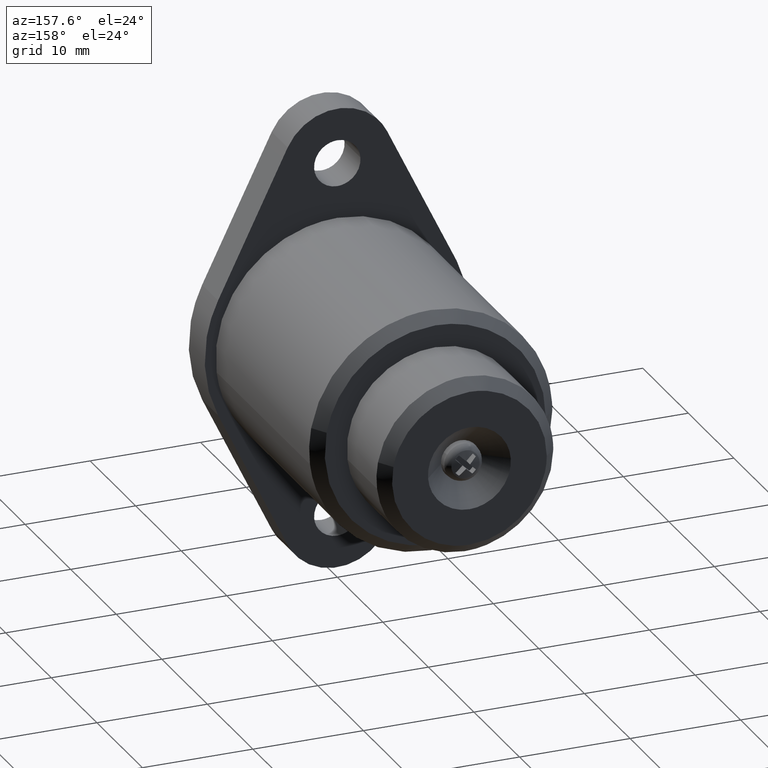
[diagram: clean part render]
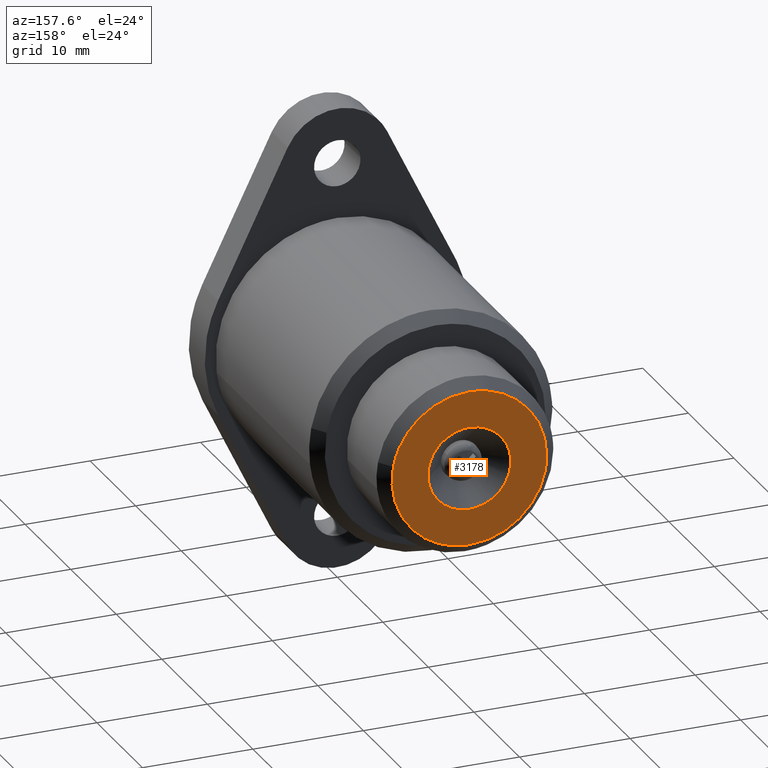
[diagram: same view with one face highlighted and labeled with its STEP entity id]
A machine part, auxiliary view. The second image highlights one B-rep face of the part: STEP entity #3178.
In plain terms, the highlighted face is a freeform B-spline surface patch.
Its self-contained STEP definition (entity closure, byte-faithful):
#673=CARTESIAN_POINT('',(3.738440001506707,29.000000000018659,-0.294211134945065));
#674=VERTEX_POINT('',#673);
#680=CARTESIAN_POINT('',(0.0,29.0,-3.749989525822798));
#681=VERTEX_POINT('',#680);
#682=CARTESIAN_POINT('',(0.0,29.0,-3.749989525822798));
#683=CARTESIAN_POINT('',(3.466464343455272,28.999999999999996,-3.749989525822799));
#684=CARTESIAN_POINT('',(3.738440001506707,29.000000000018655,-0.294211134945065));
#692=(BOUNDED_CURVE()B_SPLINE_CURVE(2,(#682,#683,#684),.UNSPECIFIED.,.F.,.U.)B_SPLINE_CURVE_WITH_KNOTS((3,3),(0.0,0.236331300619801),.UNSPECIFIED.)CURVE()GEOMETRIC_REPRESENTATION_ITEM()RATIONAL_B_SPLINE_CURVE((1.0,0.723120658620387,0.969723356144756))REPRESENTATION_ITEM(''));
#693=EDGE_CURVE('',#681,#674,#692,.T.);
#695=CARTESIAN_POINT('',(-3.738440001506707,29.000000000018659,0.294232083299468));
#696=VERTEX_POINT('',#695);
#697=CARTESIAN_POINT('',(-3.738440001506707,29.000000000018662,0.294232083299468));
#698=CARTESIAN_POINT('',(-3.750000000000000,29.0,0.147348375598001));
#699=CARTESIAN_POINT('',(-3.750000000000000,29.0,0.000010474177201));
#700=CARTESIAN_POINT('',(-3.750000000000000,29.000000000000007,-3.749989525822798));
#701=CARTESIAN_POINT('',(0.0,29.0,-3.749989525822798));
#709=(BOUNDED_CURVE()B_SPLINE_CURVE(2,(#697,#698,#699,#700,#701),.UNSPECIFIED.,.F.,.U.)B_SPLINE_CURVE_WITH_KNOTS((3,2,3),(0.736331300619801,0.750000000000000,1.0),.UNSPECIFIED.)CURVE()GEOMETRIC_REPRESENTATION_ITEM()RATIONAL_B_SPLINE_CURVE((0.969723356144756,0.983986122566160,1.0,0.707106781186547,1.0))REPRESENTATION_ITEM(''));
#710=EDGE_CURVE('',#696,#681,#709,.T.);
#743=CARTESIAN_POINT('',(0.0,29.0,3.750010474177201));
#744=VERTEX_POINT('',#743);
#745=CARTESIAN_POINT('',(0.0,29.0,3.750010474177201));
#746=CARTESIAN_POINT('',(-3.466464343455274,28.999999999999996,3.750010474177200));
#747=CARTESIAN_POINT('',(-3.738440001506707,29.000000000018655,0.294232083299468));
#755=(BOUNDED_CURVE()B_SPLINE_CURVE(2,(#745,#746,#747),.UNSPECIFIED.,.F.,.U.)B_SPLINE_CURVE_WITH_KNOTS((3,3),(0.500000000000000,0.736331300619801),.UNSPECIFIED.)CURVE()GEOMETRIC_REPRESENTATION_ITEM()RATIONAL_B_SPLINE_CURVE((1.0,0.723120658620387,0.969723356144756))REPRESENTATION_ITEM(''));
#756=EDGE_CURVE('',#744,#696,#755,.T.);
#758=CARTESIAN_POINT('',(3.738440001506707,29.000000000018659,-0.294211134945065));
#759=CARTESIAN_POINT('',(3.750000000000000,28.999999999999996,-0.147327427243598));
#760=CARTESIAN_POINT('',(3.750000000000000,29.0,0.000010474177201));
#761=CARTESIAN_POINT('',(3.750000000000000,29.000000000000007,3.750010474177201));
#762=CARTESIAN_POINT('',(0.0,29.0,3.750010474177201));
#770=(BOUNDED_CURVE()B_SPLINE_CURVE(2,(#758,#759,#760,#761,#762),.UNSPECIFIED.,.F.,.U.)B_SPLINE_CURVE_WITH_KNOTS((3,2,3),(0.236331300619801,0.250000000000000,0.500000000000000),.UNSPECIFIED.)CURVE()GEOMETRIC_REPRESENTATION_ITEM()RATIONAL_B_SPLINE_CURVE((0.969723356144756,0.983986122566160,1.0,0.707106781186547,1.0))REPRESENTATION_ITEM(''));
#771=EDGE_CURVE('',#674,#744,#770,.T.);
#1358=CARTESIAN_POINT('',(6.881611104913361,28.999999999999901,1.281875876920605));
#1359=VERTEX_POINT('',#1358);
#1365=CARTESIAN_POINT('',(-0.000018141802190,29.0,7.000010474177202));
#1366=VERTEX_POINT('',#1365);
#1367=CARTESIAN_POINT('',(-0.000018141802190,29.0,7.000010474177202));
#1368=CARTESIAN_POINT('',(5.816473962868499,28.999999999999996,7.000010474177201));
#1369=CARTESIAN_POINT('',(6.881611104913361,28.999999999999901,1.281875876920605));
#1377=(BOUNDED_CURVE()B_SPLINE_CURVE(2,(#1367,#1368,#1369),.UNSPECIFIED.,.F.,.U.)B_SPLINE_CURVE_WITH_KNOTS((3,3),(0.500000000000000,0.718554736286749),.UNSPECIFIED.)CURVE()GEOMETRIC_REPRESENTATION_ITEM()RATIONAL_B_SPLINE_CURVE((1.0,0.743947199208195,0.935586817236681))REPRESENTATION_ITEM(''));
#1378=EDGE_CURVE('',#1366,#1359,#1377,.T.);
#1380=CARTESIAN_POINT('',(-6.999751603255109,28.999999999996021,-0.061075274340515));
#1381=VERTEX_POINT('',#1380);
#1382=CARTESIAN_POINT('',(-6.999751603255109,28.999999999996025,-0.061075274340515));
#1383=CARTESIAN_POINT('',(-7.000018141802192,28.999999999999996,-0.030532981596775));
#1384=CARTESIAN_POINT('',(-7.000018141802191,29.0,0.000010474177202));
#1385=CARTESIAN_POINT('',(-7.000018141802192,29.000000000000007,7.000010474177201));
#1386=CARTESIAN_POINT('',(-0.000018141802190,29.0,7.000010474177202));
#1394=(BOUNDED_CURVE()B_SPLINE_CURVE(2,(#1382,#1383,#1384,#1385,#1386),.UNSPECIFIED.,.F.,.U.)B_SPLINE_CURVE_WITH_KNOTS((3,2,3),(0.248460105663550,0.250000000000000,0.500000000000000),.UNSPECIFIED.)CURVE()GEOMETRIC_REPRESENTATION_ITEM()RATIONAL_B_SPLINE_CURVE((0.996414028097020,0.998195901564658,1.0,0.707106781186547,1.0))REPRESENTATION_ITEM(''));
#1395=EDGE_CURVE('',#1381,#1366,#1394,.T.);
#1505=CARTESIAN_POINT('',(-0.000018141802190,29.0,-6.999989525822798));
#1506=VERTEX_POINT('',#1505);
#1507=CARTESIAN_POINT('',(-0.000018141802190,29.0,-6.999989525822798));
#1508=CARTESIAN_POINT('',(-6.939196615909407,29.000000000000004,-6.999989525822796));
#1509=CARTESIAN_POINT('',(-6.999751603255109,28.999999999996017,-0.061075274340515));
#1517=(BOUNDED_CURVE()B_SPLINE_CURVE(2,(#1507,#1508,#1509),.UNSPECIFIED.,.F.,.U.)B_SPLINE_CURVE_WITH_KNOTS((3,3),(0.0,0.248460105663550),.UNSPECIFIED.)CURVE()GEOMETRIC_REPRESENTATION_ITEM()RATIONAL_B_SPLINE_CURVE((1.0,0.708910879621889,0.996414028097020))REPRESENTATION_ITEM(''));
#1518=EDGE_CURVE('',#1506,#1381,#1517,.T.);
#1520=CARTESIAN_POINT('',(6.881611104913361,28.999999999999904,1.281875876920606));
#1521=CARTESIAN_POINT('',(6.999981858197809,28.999999999999996,0.646408505685819));
#1522=CARTESIAN_POINT('',(6.999981858197810,29.0,0.000010474177202));
#1523=CARTESIAN_POINT('',(6.999981858197810,29.000000000000007,-6.999989525822798));
#1524=CARTESIAN_POINT('',(-0.000018141802190,29.0,-6.999989525822798));
#1532=(BOUNDED_CURVE()B_SPLINE_CURVE(2,(#1520,#1521,#1522,#1523,#1524),.UNSPECIFIED.,.F.,.U.)B_SPLINE_CURVE_WITH_KNOTS((3,2,3),(0.718554736286750,0.750000000000000,1.0),.UNSPECIFIED.)CURVE()GEOMETRIC_REPRESENTATION_ITEM()RATIONAL_B_SPLINE_CURVE((0.935586817236683,0.963159581978354,1.0,0.707106781186547,1.0))REPRESENTATION_ITEM(''));
#1533=EDGE_CURVE('',#1359,#1506,#1532,.T.);
#3161=CARTESIAN_POINT('',(-7.699025162574853,29.0,-7.699289498688082));
#3162=CARTESIAN_POINT('',(7.698992383723585,29.0,-7.699289498688080));
#3163=CARTESIAN_POINT('',(-7.699025162574853,29.0,7.699310822551748));
#3164=CARTESIAN_POINT('',(7.698992383723585,29.0,7.699310822551748));
#3165=B_SPLINE_SURFACE_WITH_KNOTS('',1,1,((#3161,#3163),(#3162,#3164)),.UNSPECIFIED.,.F.,.F.,.U.,(2,2),(2,2),(0.0,15.398017546298441),(0.0,15.398600321239829),.UNSPECIFIED.);
#3166=ORIENTED_EDGE('',*,*,#1518,.T.);
#3167=ORIENTED_EDGE('',*,*,#1395,.T.);
#3168=ORIENTED_EDGE('',*,*,#1378,.T.);
#3169=ORIENTED_EDGE('',*,*,#1533,.T.);
#3170=EDGE_LOOP('',(#3166,#3167,#3168,#3169));
#3171=FACE_OUTER_BOUND('',#3170,.T.);
#3172=ORIENTED_EDGE('',*,*,#756,.T.);
#3173=ORIENTED_EDGE('',*,*,#710,.T.);
#3174=ORIENTED_EDGE('',*,*,#693,.T.);
#3175=ORIENTED_EDGE('',*,*,#771,.T.);
#3176=EDGE_LOOP('',(#3172,#3173,#3174,#3175));
#3177=FACE_BOUND('',#3176,.T.);
#3178=ADVANCED_FACE('',(#3171,#3177),#3165,.F.);